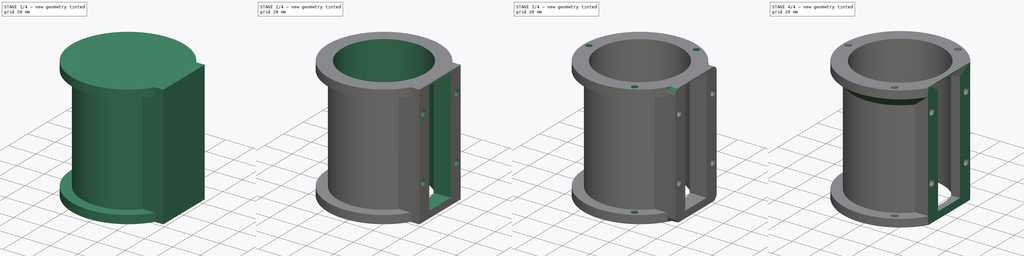
[diagram: build sequence overview — one tinted view per stage of 4, left to right]
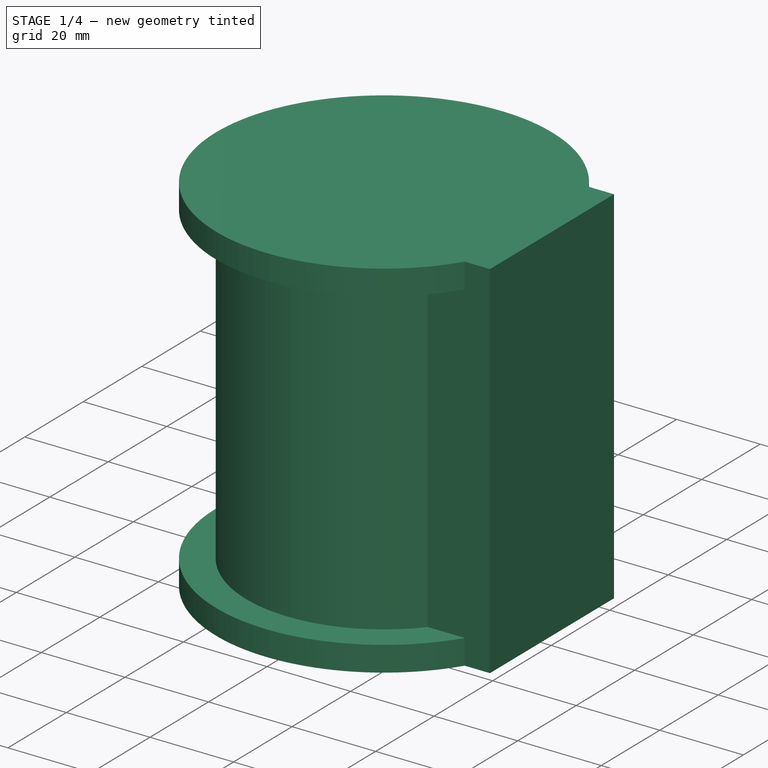
[diagram: stage 1 of 4 — iso view after this stage's code; geometry added in this stage tinted green]
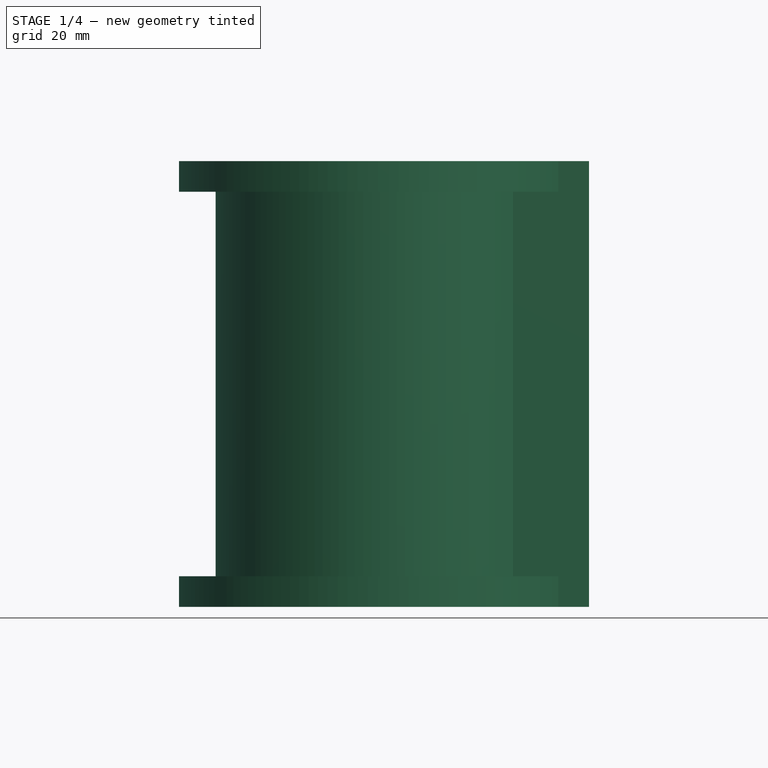
[diagram: stage 1 of 4 — front view after this stage's code; geometry added in this stage tinted green]
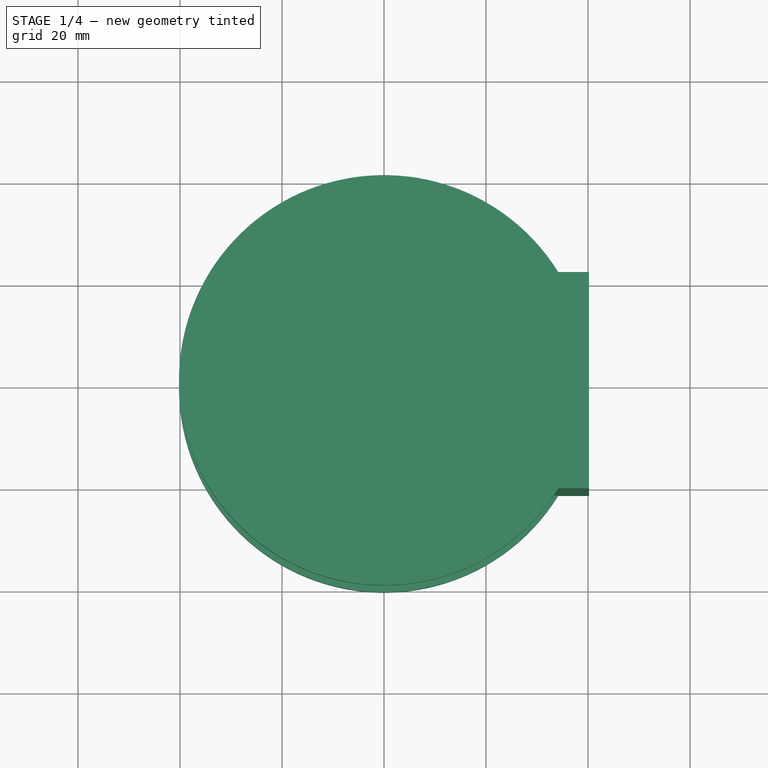
[diagram: stage 1 of 4 — top view after this stage's code; geometry added in this stage tinted green]
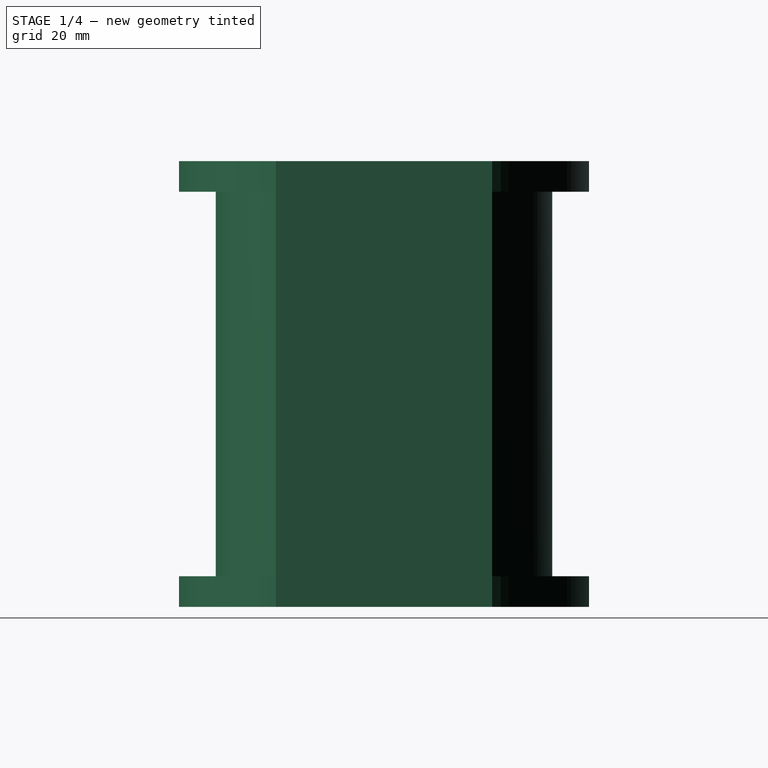
[diagram: stage 1 of 4 — right view after this stage's code; geometry added in this stage tinted green]
FCSTD DOCUMENT  (FreeCAD 0.21R33668 +26 (Git))
Label: coreV1.0
License: All rights reserved
LicenseURL: http://en.wikipedia.org/wiki/All_rights_reserved
objects: Sketcher::SketchObject×10, PartDesign::Pad×4, PartDesign::Pocket×3, PartDesign::Hole×3, PartDesign::Plane×2, PartDesign::Fillet×2, PartDesign::Chamfer×2, PartDesign::Body×1
note: 41 computed .brp shape members not serialized (recipe doc carries the construction recipe); baked Part::Feature solids carry a one-line shape summary decoded from their .brp

FEATURE [Sketcher::SketchObject] Sketch
  FullyConstrained = true
  MapMode = 5
  Support = -> [XY_Plane]
  sketch-geometry (1):
    g0: Circle CenterX=0 CenterY=0 CenterZ=0 NormalX=0 NormalY=0 NormalZ=1 AngleXU=0 Radius=33
  constraints (2):
    c: Coincident(g0,g-1)
    c: Diameter(g0) = 66
FEATURE [PartDesign::Pad] Pad
  Direction = (0,0,1)
  Length = 87.4
  Length2 = 10
  Profile = -> Sketch
  ReferenceAxis = -> Sketch [N_Axis]
  Type = 0
FEATURE [Sketcher::SketchObject] Sketch001
  FullyConstrained = true
  MapMode = 5
  Support = -> [XY_Plane]
  sketch-geometry (1):
    g0: Circle CenterX=0 CenterY=0 CenterZ=0 NormalX=0 NormalY=0 NormalZ=1 AngleXU=0 Radius=40.2
  constraints (2):
    c: Coincident(g0,g-1)
    c: Diameter(g0) = 80.4
FEATURE [PartDesign::Pad] Pad001
  BaseFeature = -> Pad
  Direction = (0,0,1)
  Length = 6
  Length2 = 10
  Profile = -> Sketch001
  ReferenceAxis = -> Sketch001 [N_Axis]
  Type = 0
FEATURE [PartDesign::Plane] DatumPlane
  Length = 89.8682
  MapMode = 5
  Placement = pos=(0,0,87.4) rot=(0,0,1;0rad)
  ResizeMode = 0
  Support = -> [Pad001]
  Width = 95.8667
FEATURE [Sketcher::SketchObject] Sketch002
  FullyConstrained = true
  MapMode = 5
  Placement = pos=(0,0,87.4) rot=(0,0,1;0rad)
  Support = -> [DatumPlane]
  sketch-geometry (1):
    g0: Circle CenterX=0 CenterY=0 CenterZ=0 NormalX=0 NormalY=0 NormalZ=1 AngleXU=0 Radius=40.2
  constraints (2):
    c: Coincident(g0,g-1)
    c: Diameter(g0) = 80.4
FEATURE [PartDesign::Pad] Pad002
  BaseFeature = -> Pad001
  Direction = (0,0,1)
  Length = 6
  Length2 = 10
  Profile = -> Sketch002
  ReferenceAxis = -> Sketch002 [N_Axis]
  Reversed = true
  Type = 0
FEATURE [Sketcher::SketchObject] Sketch003
  FullyConstrained = true
  MapMode = 5
  Placement = pos=(0,0,0) rot=(0.57735,0.57735,0.57735;2.0944rad)
  Support = -> [YZ_Plane]
  sketch-geometry (5):
    g0: LineSegment StartX=-21.2 StartY=0 StartZ=0 EndX=-21.2 EndY=87.4 EndZ=0
    g1: LineSegment StartX=-21.2 StartY=87.4 StartZ=0 EndX=21.2 EndY=87.4 EndZ=0
    g2: LineSegment StartX=21.2 StartY=87.4 StartZ=0 EndX=21.2 EndY=0 EndZ=0
    g3: LineSegment StartX=21.2 StartY=0 StartZ=0 EndX=-21.2 EndY=0 EndZ=0
    g4: GeomPoint X=0 Y=43.7 Z=0
  constraints (13):
    c: Coincident(g0,g1)
    c: Coincident(g1,g2)
    c: Coincident(g2,g3)
    c: Coincident(g3,g0)
    c: Horizontal(g1)
    c: Horizontal(g3)
    c: Vertical(g0)
    c: Vertical(g2)
    c: Symmetric(g1,g0,g4)
    c: PointOnObject(g4,g-2)
    c: DistanceY(g-1,g0) = 0
    c: Distance(g3) = 42.4
    c: Distance(g2) = 87.4
FEATURE [PartDesign::Pad] Pad003
  BaseFeature = -> Pad002
  Direction = (1,-2e-16,3e-16)
  Length = 40.2
  Length2 = 10
  Profile = -> Sketch003
  ReferenceAxis = -> Sketch003 [N_Axis]
  Type = 0
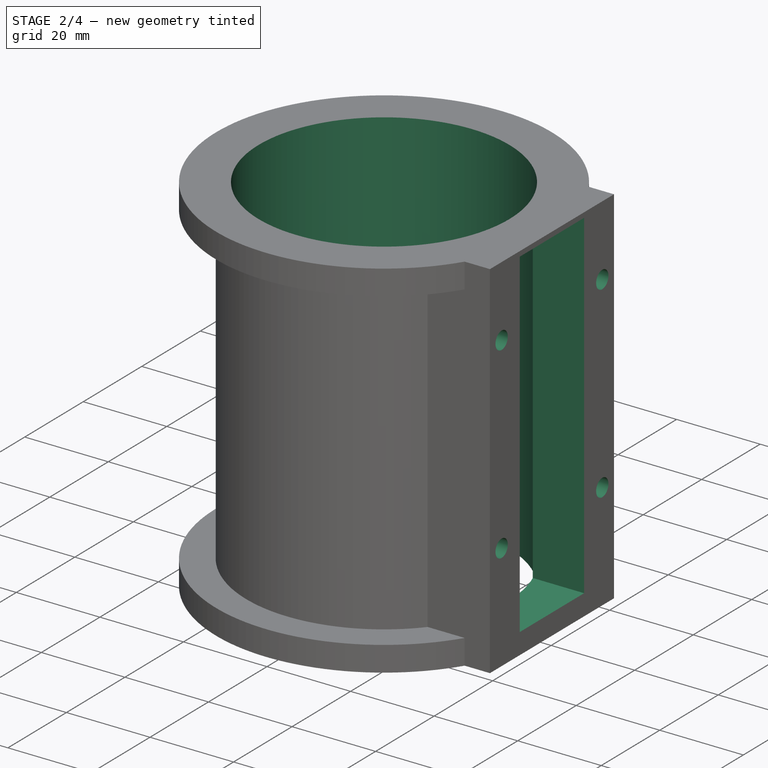
[diagram: stage 2 of 4 — iso view after this stage's code; geometry added in this stage tinted green]
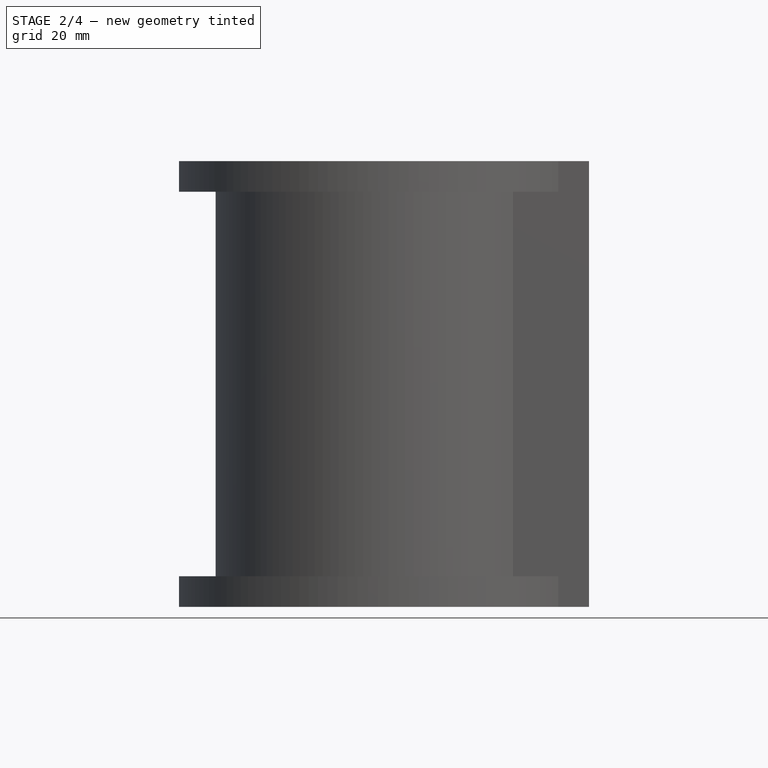
[diagram: stage 2 of 4 — front view after this stage's code; geometry added in this stage tinted green]
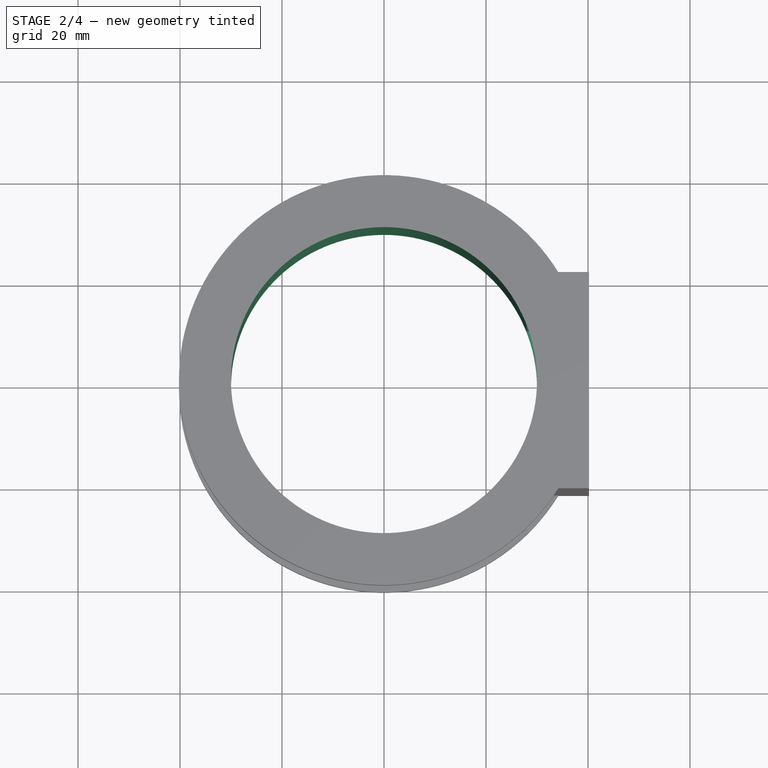
[diagram: stage 2 of 4 — top view after this stage's code; geometry added in this stage tinted green]
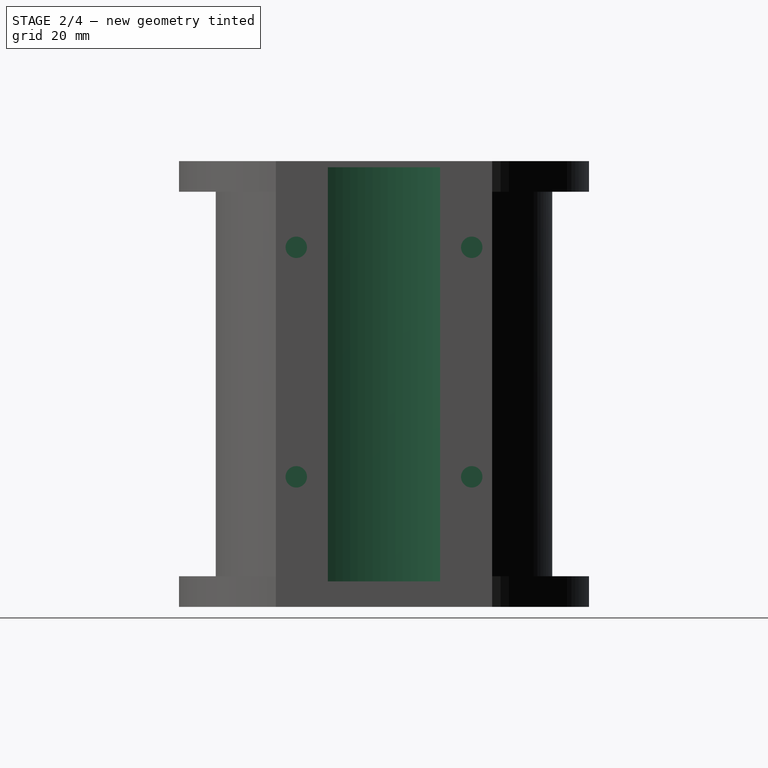
[diagram: stage 2 of 4 — right view after this stage's code; geometry added in this stage tinted green]
FEATURE [Sketcher::SketchObject] Sketch004
  FullyConstrained = true
  MapMode = 5
  Placement = pos=(0,0,87.4) rot=(0,0,1;0rad)
  Support = -> [DatumPlane]
  sketch-geometry (1):
    g0: Circle CenterX=0 CenterY=0 CenterZ=0 NormalX=0 NormalY=0 NormalZ=1 AngleXU=0 Radius=30
  constraints (2):
    c: Coincident(g0,g-1)
    c: Diameter(g0) = 60
FEATURE [PartDesign::Pocket] Pocket
  BaseFeature = -> Pad003
  Direction = (0,0,-1)
  Length = 0
  Length2 = 5
  Profile = -> Sketch004
  ReferenceAxis = -> Sketch004 [N_Axis]
  Type = 3
  UpToFace = -> Pad003 [Face3]
FEATURE [PartDesign::Plane] DatumPlane001
  Length = 99.4109
  MapMode = 5
  Placement = pos=(40.2,-8.9e-15,8.9e-15) rot=(0.57735,0.57735,0.57735;2.0944rad)
  ResizeMode = 0
  Support = -> [Pocket]
  Width = 131.412
FEATURE [Sketcher::SketchObject] Sketch005
  FullyConstrained = true
  MapMode = 5
  Placement = pos=(40.2,-8.9e-15,8.9e-15) rot=(0.57735,0.57735,0.57735;2.0944rad)
  Support = -> [DatumPlane001]
  sketch-geometry (4):
    g0: Circle CenterX=-17.2 CenterY=70.5 CenterZ=0 NormalX=0 NormalY=0 NormalZ=1 AngleXU=0 Radius=2.1
    g1: Circle CenterX=-17.2 CenterY=25.5 CenterZ=0 NormalX=0 NormalY=0 NormalZ=1 AngleXU=0 Radius=2.1
    g2: Circle CenterX=17.2 CenterY=25.5 CenterZ=0 NormalX=0 NormalY=0 NormalZ=1 AngleXU=0 Radius=2.1
    g3: Circle CenterX=17.2 CenterY=70.5 CenterZ=0 NormalX=0 NormalY=0 NormalZ=1 AngleXU=0 Radius=2.1
  constraints (12):
    c: Diameter(g0) = 4.2
    c: Equal(g0,g3)
    c: Equal(g0,g1)
    c: Equal(g0,g2)
    c: DistanceY(g1,g0) = 45
    c: Horizontal(g0,g3)
    c: Horizontal(g1,g2)
    c: Vertical(g0,g1)
    c: Vertical(g3,g2)
    c: DistanceY(g-1,g1) = 25.5
    c: DistanceX(g1,g-1) = 17.2
    c: DistanceX(g-1,g2) = 17.2
FEATURE [Sketcher::SketchObject] Sketch006
  FullyConstrained = true
  MapMode = 5
  Placement = pos=(40.2,-8.9e-15,8.9e-15) rot=(0.57735,0.57735,0.57735;2.0944rad)
  Support = -> [DatumPlane001]
  sketch-geometry (5):
    g0: LineSegment StartX=11 StartY=5 StartZ=0 EndX=11 EndY=86.2 EndZ=0
    g1: LineSegment StartX=11 StartY=86.2 StartZ=0 EndX=-11 EndY=86.2 EndZ=0
    g2: LineSegment StartX=-11 StartY=86.2 StartZ=0 EndX=-11 EndY=5 EndZ=0
    g3: LineSegment StartX=-11 StartY=5 StartZ=0 EndX=11 EndY=5 EndZ=0
    g4: GeomPoint X=0 Y=45.6 Z=0
  constraints (13):
    c: Coincident(g0,g1)
    c: Coincident(g1,g2)
    c: Coincident(g2,g3)
    c: Coincident(g3,g0)
    c: Horizontal(g1)
    c: Horizontal(g3)
    c: Vertical(g0)
    c: Vertical(g2)
    c: Symmetric(g1,g0,g4)
    c: PointOnObject(g4,g-2)
    c: DistanceY(g-1,g2) = 5
    c: Distance(g0) = 81.2
    c: Distance(g1) = 22
FEATURE [PartDesign::Hole] Hole
  BaseFeature = -> Pocket
  CustomThreadClearance = 0
  Depth = 12
  DepthType = 0
  Diameter = 4.2
  DrillForDepth = false
  DrillPoint = 0
  DrillPointAngle = 118
  HoleCutCountersinkAngle = 90
  HoleCutCustomValues = false
  HoleCutDepth = 0
  HoleCutDiameter = 6.1
  HoleCutType = 0
  ModelThread = false
  Profile = -> Sketch005
  Tapered = false
  TaperedAngle = 90
  ThreadClass = 0
  ThreadDepth = 12
  ThreadDepthType = 0
  ThreadDirection = 0
  ThreadFit = 0
  ThreadSize = 0
  ThreadType = 0
  Threaded = false
  UseCustomThreadClearance = false
FEATURE [PartDesign::Pocket] Pocket001
  BaseFeature = -> Hole
  Direction = (-1,2e-16,-2e-16)
  Length = 0
  Length2 = 5
  Profile = -> Sketch006
  ReferenceAxis = -> Sketch006 [N_Axis]
  Type = 3
  UpToFace = -> Hole [Face3]
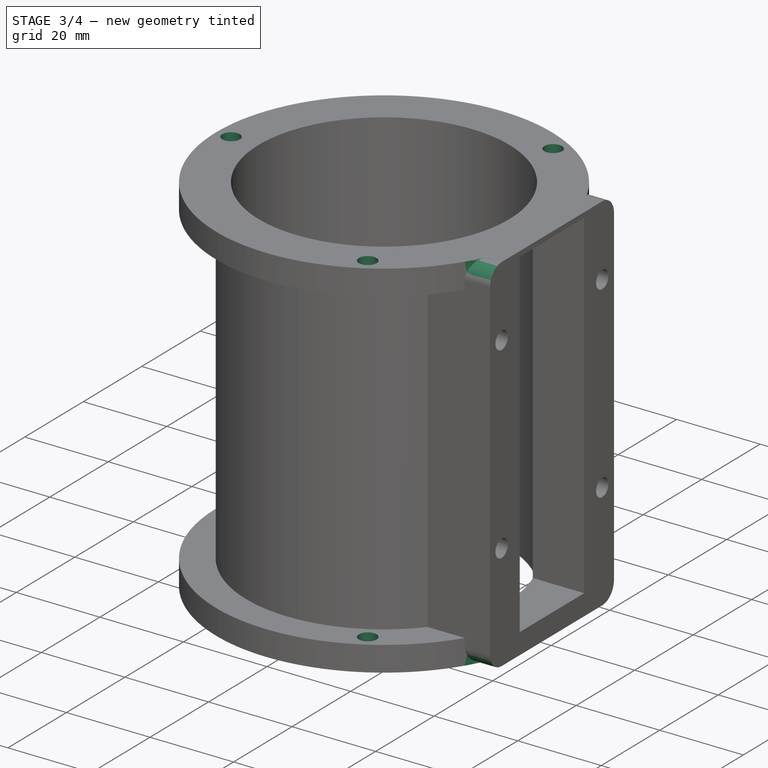
[diagram: stage 3 of 4 — iso view after this stage's code; geometry added in this stage tinted green]
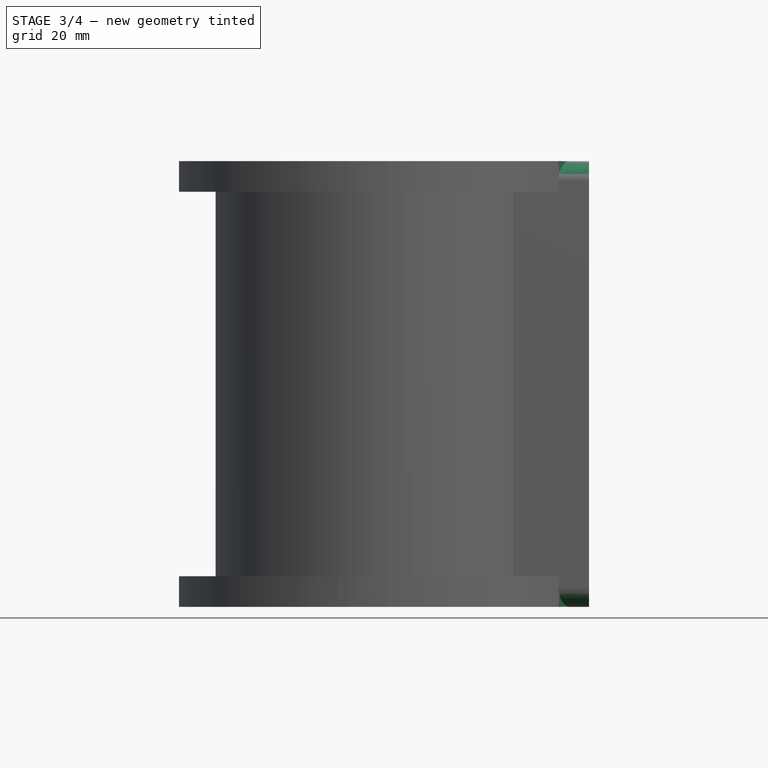
[diagram: stage 3 of 4 — front view after this stage's code; geometry added in this stage tinted green]
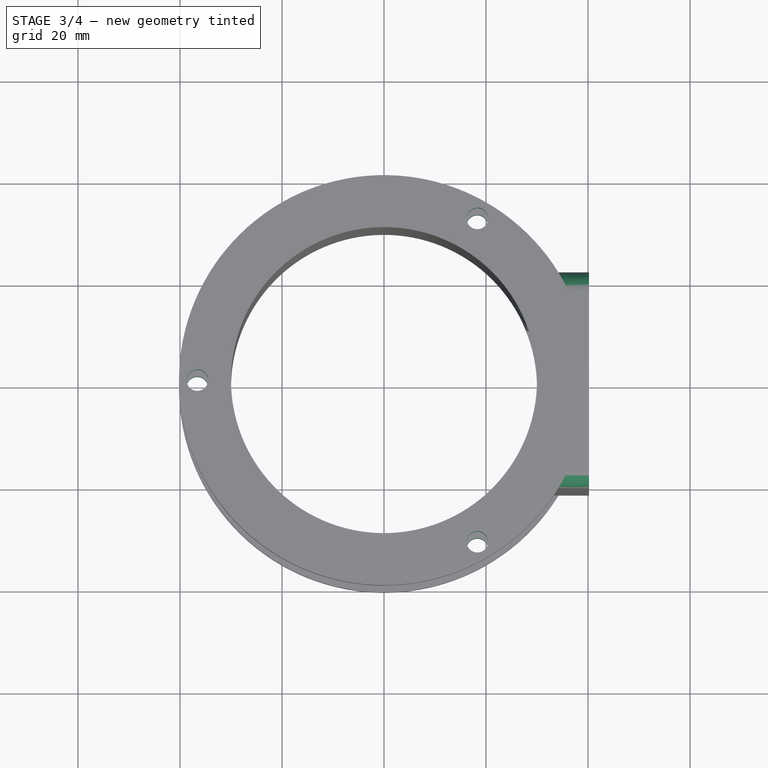
[diagram: stage 3 of 4 — top view after this stage's code; geometry added in this stage tinted green]
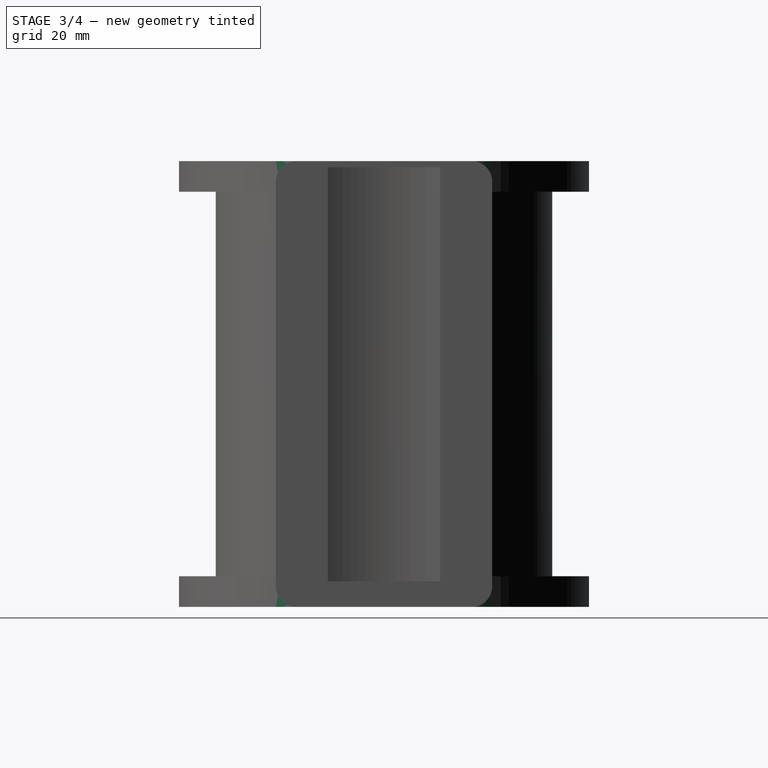
[diagram: stage 3 of 4 — right view after this stage's code; geometry added in this stage tinted green]
FEATURE [Sketcher::SketchObject] Sketch007
  FullyConstrained = true
  MapMode = 5
  Placement = pos=(0,0,87.4) rot=(0,0,1;0rad)
  Support = -> [DatumPlane]
  sketch-geometry (3):
    g0: Circle CenterX=-36.6 CenterY=0 CenterZ=0 NormalX=0 NormalY=0 NormalZ=1 AngleXU=0 Radius=2.1
    g1: Circle CenterX=18.3 CenterY=31.6965 CenterZ=0 NormalX=0 NormalY=0 NormalZ=1 AngleXU=0 Radius=2.1
    g2: Circle CenterX=18.3 CenterY=-31.6965 CenterZ=0 NormalX=0 NormalY=0 NormalZ=1 AngleXU=0 Radius=2.1
  constraints (9):
    c: Distance(g0,g-1) = 36.6
    c: Diameter(g0) = 4.2
    c: Horizontal(g0,g-1)
    c: Equal(g0,g1)
    c: Equal(g0,g2)
    c: Distance(g1,g-1) = 36.6
    c: Distance(g-1,g2) = 36.6
    c: DistanceX(g-1,g1) = 18.3
    c: DistanceX(g-1,g2) = 18.3
FEATURE [Sketcher::SketchObject] Sketch008
  FullyConstrained = true
  MapMode = 5
  Support = -> [XY_Plane]
  sketch-geometry (3):
    g0: Circle CenterX=-36.6 CenterY=0 CenterZ=0 NormalX=0 NormalY=0 NormalZ=1 AngleXU=0 Radius=2.1
    g1: Circle CenterX=18.3 CenterY=-31.6965 CenterZ=0 NormalX=0 NormalY=0 NormalZ=1 AngleXU=0 Radius=2.1
    g2: Circle CenterX=18.3 CenterY=31.6965 CenterZ=0 NormalX=0 NormalY=0 NormalZ=1 AngleXU=0 Radius=2.1
  constraints (9):
    c: PointOnObject(g0,g-1)
    c: Diameter(g0) = 4.2
    c: Equal(g0,g1)
    c: Equal(g0,g2)
    c: Distance(g-1,g0) = 36.6
    c: Distance(g-1,g1) = 36.6
    c: Distance(g-1,g2) = 36.6
    c: DistanceX(g-1,g1) = 18.3
    c: DistanceX(g-1,g2) = 18.3
FEATURE [PartDesign::Hole] Hole001
  BaseFeature = -> Pocket001
  CustomThreadClearance = 0
  Depth = 6
  DepthType = 0
  Diameter = 4.2
  DrillForDepth = false
  DrillPoint = 0
  DrillPointAngle = 118
  HoleCutCountersinkAngle = 90
  HoleCutCustomValues = false
  HoleCutDepth = 0
  HoleCutDiameter = 6.1
  HoleCutType = 0
  ModelThread = false
  Profile = -> Sketch007
  Tapered = false
  TaperedAngle = 90
  ThreadClass = 0
  ThreadDepth = 6
  ThreadDepthType = 0
  ThreadDirection = 0
  ThreadFit = 0
  ThreadSize = 0
  ThreadType = 0
  Threaded = false
  UseCustomThreadClearance = false
FEATURE [PartDesign::Hole] Hole002
  BaseFeature = -> Hole001
  CustomThreadClearance = 0
  Depth = 6
  DepthType = 0
  Diameter = 4.2
  DrillForDepth = false
  DrillPoint = 0
  DrillPointAngle = 118
  HoleCutCountersinkAngle = 90
  HoleCutCustomValues = false
  HoleCutDepth = 0
  HoleCutDiameter = 6.1
  HoleCutType = 0
  ModelThread = false
  Profile = -> Sketch008
  Reversed = true
  Tapered = false
  TaperedAngle = 90
  ThreadClass = 0
  ThreadDepth = 6
  ThreadDepthType = 0
  ThreadDirection = 0
  ThreadFit = 0
  ThreadSize = 0
  ThreadType = 0
  Threaded = false
  UseCustomThreadClearance = false
FEATURE [PartDesign::Fillet] Fillet
  Base = -> Hole002 [Edge43,Edge46,Edge78,Edge83]
  BaseFeature = -> Hole002
  Radius = 4
  SupportTransform = false
  UseAllEdges = false
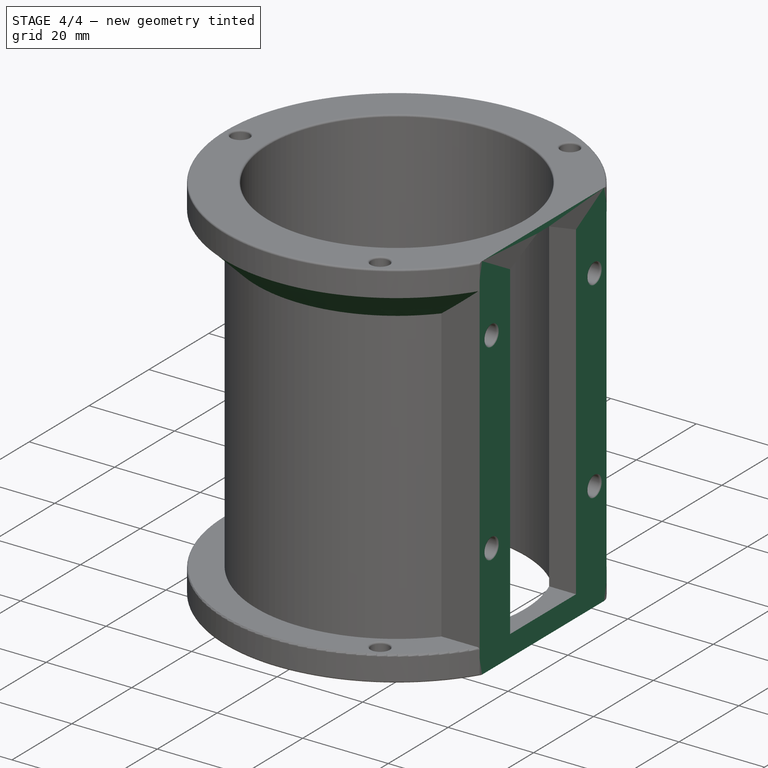
[diagram: stage 4 of 4 — iso view after this stage's code; geometry added in this stage tinted green]
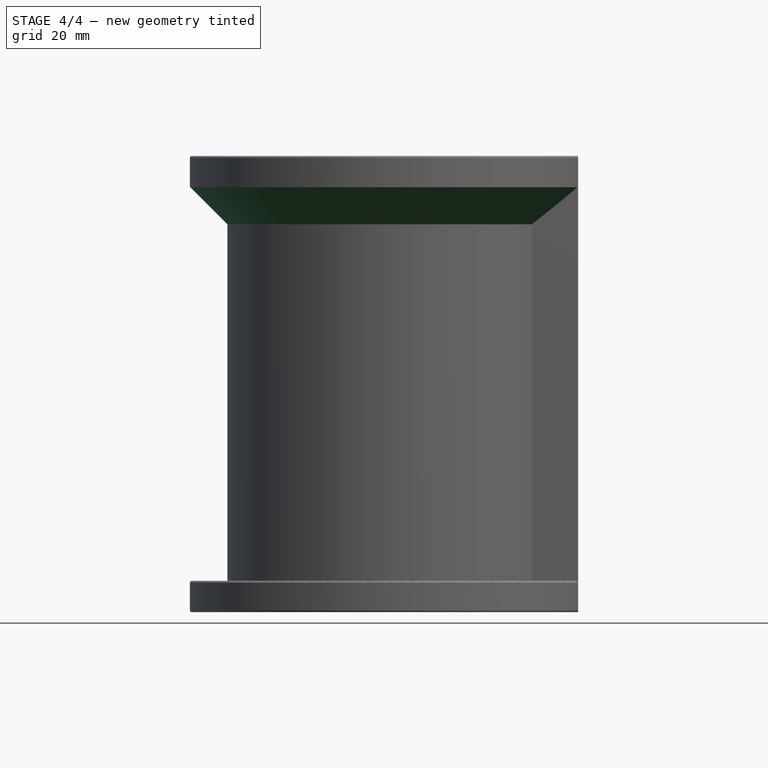
[diagram: stage 4 of 4 — front view after this stage's code; geometry added in this stage tinted green]
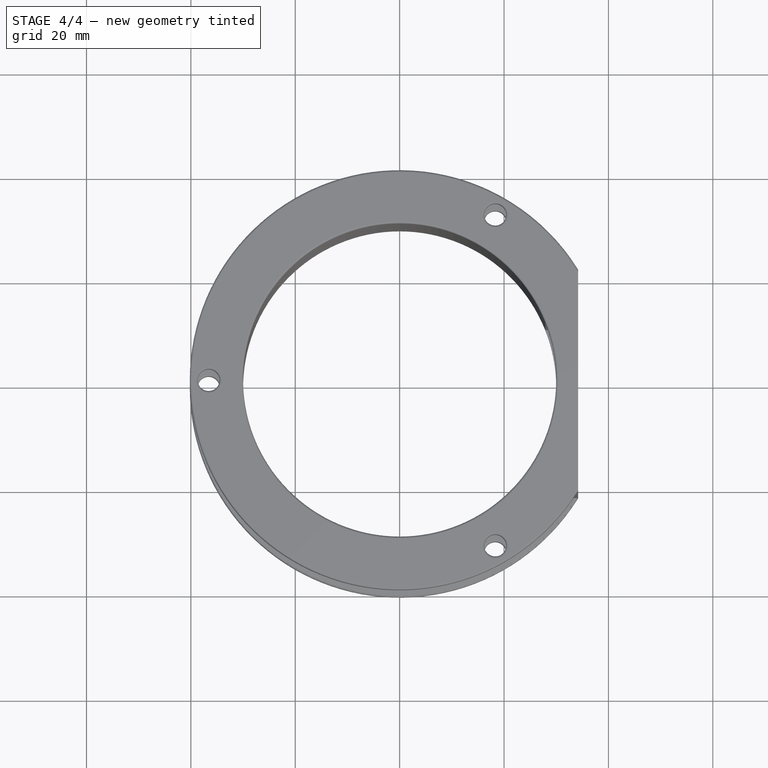
[diagram: stage 4 of 4 — top view after this stage's code; geometry added in this stage tinted green]
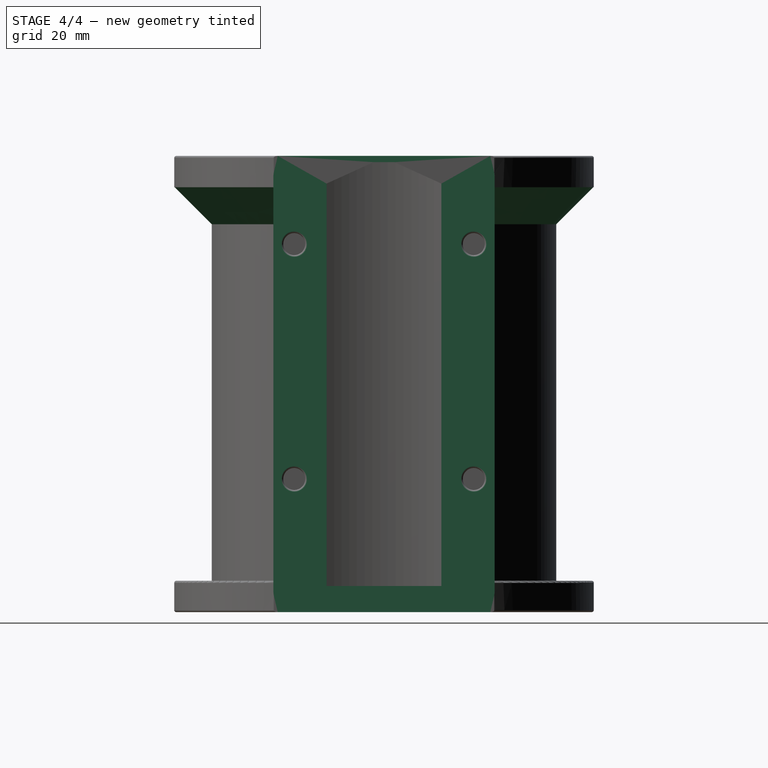
[diagram: stage 4 of 4 — right view after this stage's code; geometry added in this stage tinted green]
FEATURE [PartDesign::Chamfer] Chamfer
  Angle = 45
  Base = -> Fillet [Edge89,Edge90]
  BaseFeature = -> Fillet
  ChamferType = 1
  FlipDirection = false
  Size = 9
  Size2 = 4.1
  SupportTransform = false
  UseAllEdges = false
FEATURE [PartDesign::Chamfer] Chamfer001
  Angle = 45
  Base = -> Chamfer [Edge102]
  BaseFeature = -> Chamfer
  ChamferType = 0
  FlipDirection = false
  Size = 7.1
  Size2 = 1
  SupportTransform = false
  UseAllEdges = false
FEATURE [Sketcher::SketchObject] Sketch009
  FullyConstrained = true
  MapMode = 5
  Placement = pos=(40.2,-8.9e-15,8.9e-15) rot=(0.57735,0.57735,0.57735;2.0944rad)
  Support = -> [DatumPlane001]
  sketch-geometry (4):
    g0: LineSegment StartX=-21.2 StartY=0 StartZ=0 EndX=21.2 EndY=0 EndZ=0
    g1: LineSegment StartX=21.2 StartY=0 StartZ=0 EndX=21.2 EndY=87.4 EndZ=0
    g2: LineSegment StartX=21.2 StartY=87.4 StartZ=0 EndX=-21.2 EndY=87.4 EndZ=0
    g3: LineSegment StartX=-21.2 StartY=87.4 StartZ=0 EndX=-21.2 EndY=0 EndZ=0
  constraints (12):
    c: Coincident(g0,g1)
    c: Coincident(g1,g2)
    c: Coincident(g2,g3)
    c: Coincident(g3,g0)
    c: Horizontal(g0)
    c: Horizontal(g2)
    c: Vertical(g1)
    c: Vertical(g3)
    c: PointOnObject(g0,g-1)
    c: Distance(g3) = 87.4
    c: Distance(g2) = 42.4
    c: DistanceX(g-1,g0) = 21.2
FEATURE [PartDesign::Pocket] Pocket002
  BaseFeature = -> Chamfer001
  Direction = (-1,2e-16,-2e-16)
  Length = 6
  Length2 = 5
  Profile = -> Sketch009
  ReferenceAxis = -> Sketch009 [N_Axis]
  Type = 0
FEATURE [PartDesign::Fillet] Fillet001
  Base = -> Pocket002 [Edge32,Edge33,Edge34,Edge41,Edge94,Edge93,Edge92,Edge62,Edge63,Edge64,Edge52,Edge53,Edge51,Edge47,Edge18,Edge45,Edge102,Edge99,Edge100,Edge115,Edge111,Edge110]
  BaseFeature = -> Pocket002
  Radius = 0.4
  SupportTransform = false
  UseAllEdges = false
FEATURE [PartDesign::Body] Body
  Group = -> [Sketch,Pad,Sketch001,Pad001,DatumPlane,Sketch002,Pad002,Sketch004,Sketch003,Pad003,Pocket,DatumPlane001,Sketch005,Sketch006,Hole,Pocket001,Sketch007,Sketch008,Hole001,Hole002,Fillet,Chamfer,Chamfer001,Sketch009,Pocket002,Fillet001]
  Origin = -> Origin
  Tip = -> Fillet001
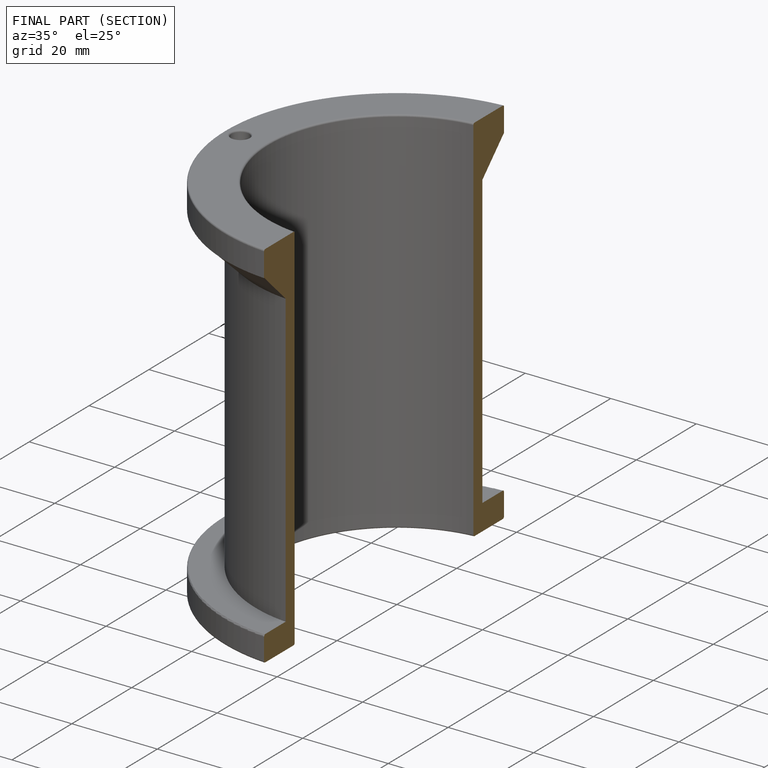
[diagram: finished part — half-section view (interior)]
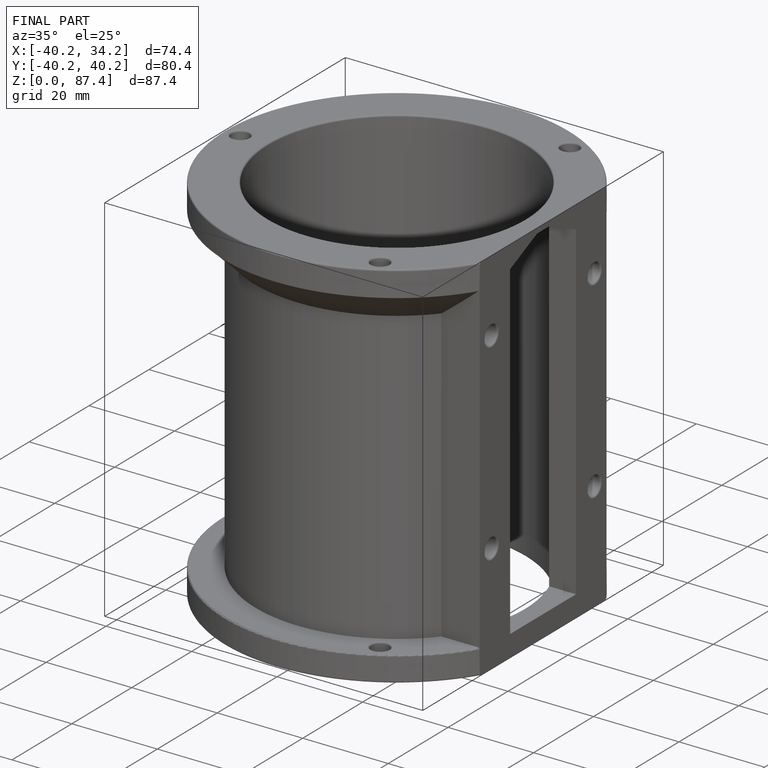
[diagram: finished part — iso view with bounding-box wireframe]
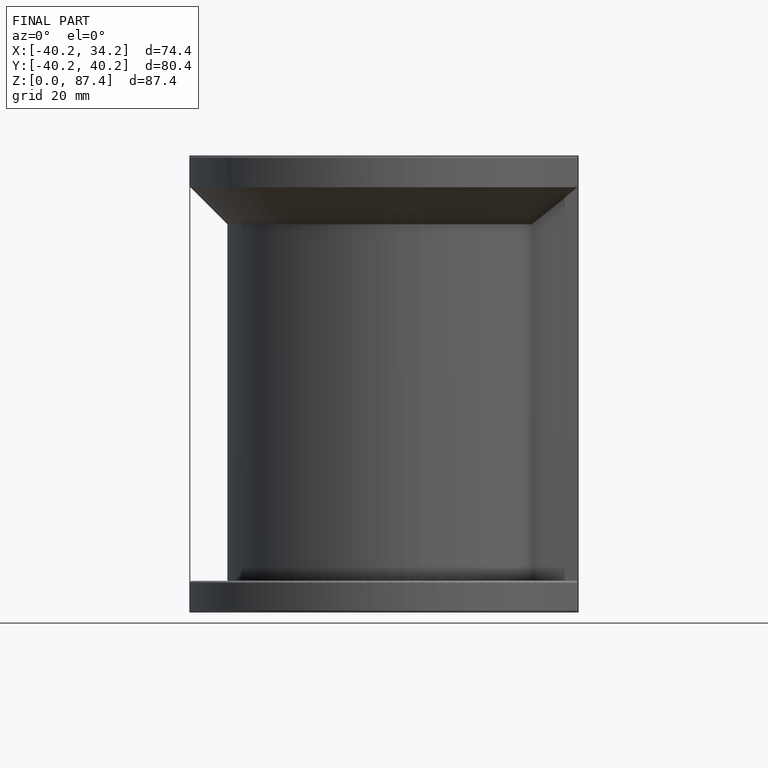
[diagram: finished part — front view with bounding-box wireframe]
